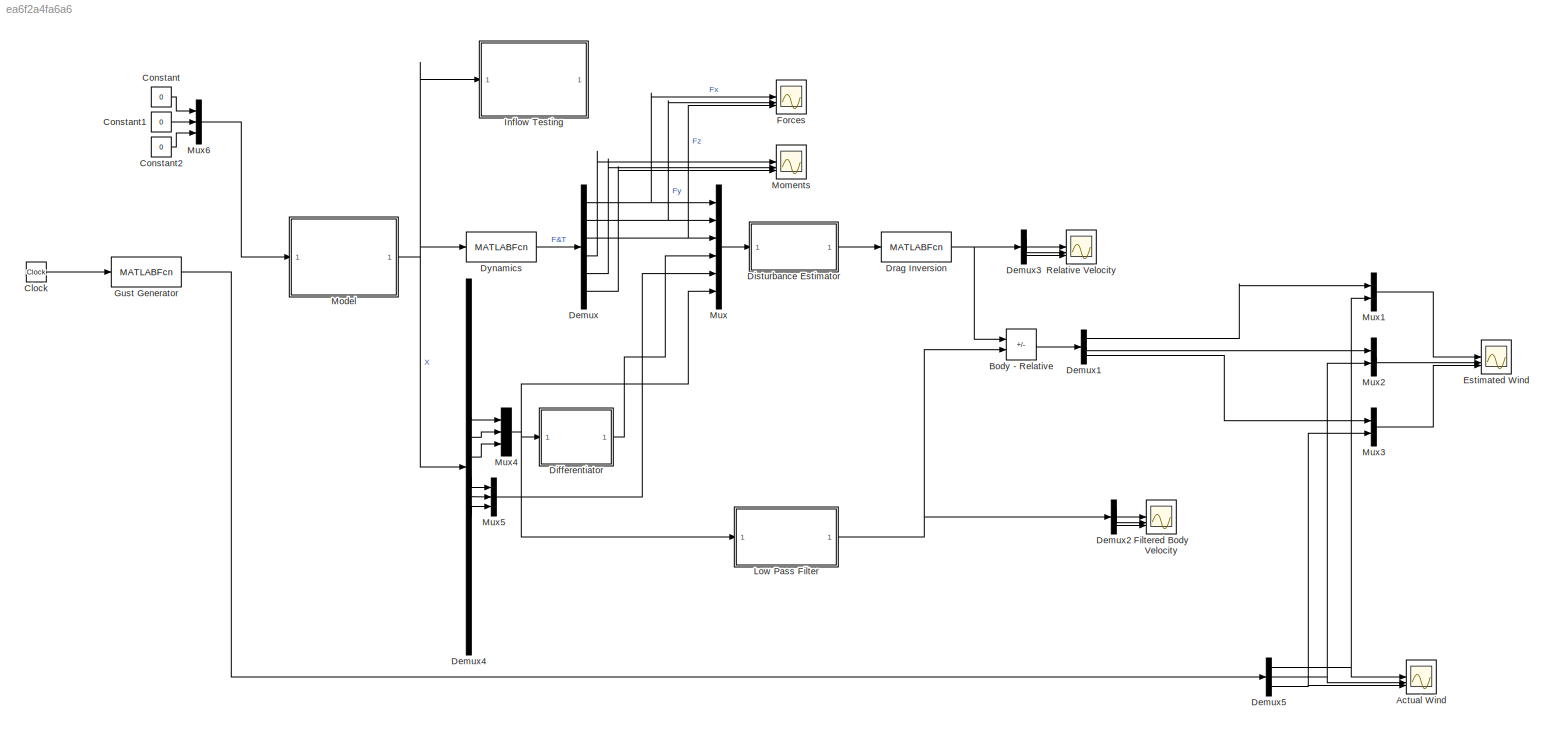
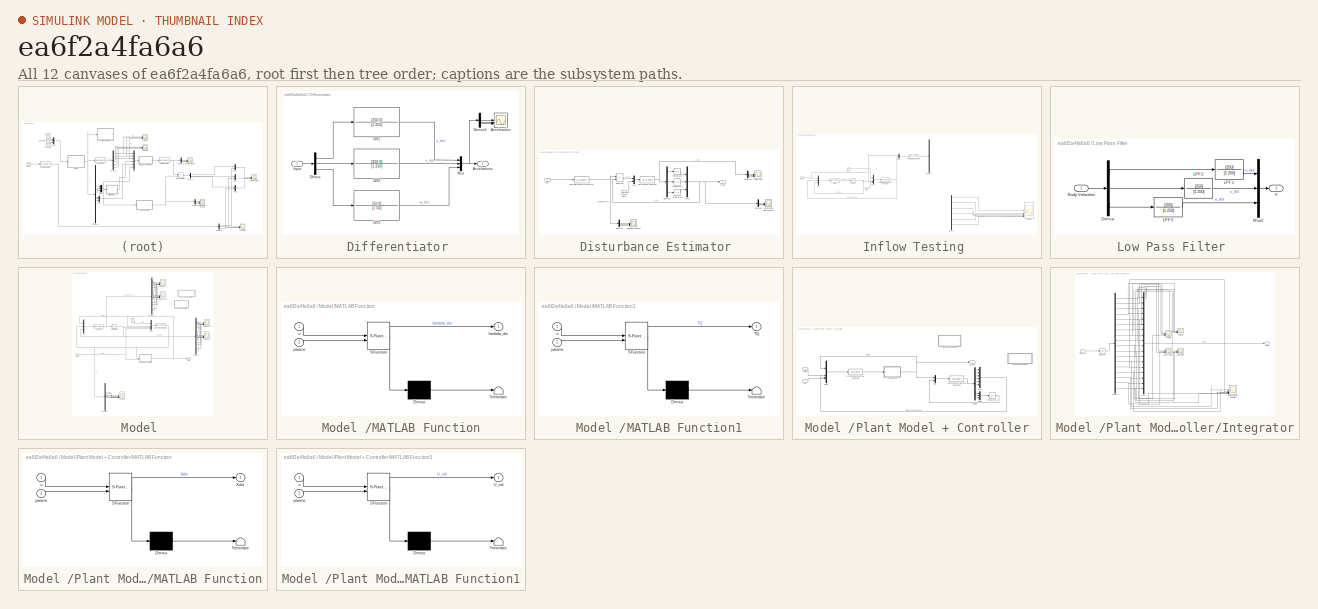
[diagram: thumbnail index - all 12 canvases of the model, root first then tree order]
MODEL slx_ea6f2a4fa6a6
KIND model
CONFIG AbsTol = auto
CONFIG EnableMultiTasking = off
CONFIG FixedStep = auto
CONFIG MaxStep = auto
CONFIG MinStep = auto
CONFIG RelTol = 1e-3
CONFIG SampleTimeConstraint = Unconstrained
CONFIG SolverName = VariableStepAuto
CONFIG StartTime = 0.0
CONFIG StopTime = 20
BLOCK [Scope] Actual Wind
  Commented = on
  Floating = off
  NumInputPorts = 3
  ScopeSpecificationString = Simulink.scopes.TimeScopeBlockCfg('CurrentConfiguration', extmgr.ConfigurationSet(extmgr.Configuration('Core','General UI',true),extmgr.Configuration('Core','Source UI',true),extmgr.Configuration('Sources','WiredSimulink',true,'DataLoggingVariableName','ScopeData2'),extmgr.Configuration('Visuals','Time Domain',true,'SerializedDisplays',{struct('MinYLimReal','-1.00000','MaxYLimReal','1.00000','YLab...<+3015ch>
BLOCK [Sum] Body - Relative
  Commented = on
  IconShape = rectangular
  Inputs = +-
BLOCK [Clock] Clock
BLOCK [Constant] Constant
  Value = 0
BLOCK [Constant] Constant1
  Value = 0
BLOCK [Constant] Constant2
  Value = 0
BLOCK [Demux] Demux
  Commented = on
  Outputs = 6
BLOCK [Demux] Demux1
  Commented = on
  Outputs = 3
BLOCK [Demux] Demux2
  Commented = on
  Outputs = 3
BLOCK [Demux] Demux3
  Commented = on
  Outputs = 3
BLOCK [Demux] Demux4
  Commented = on
  Outputs = 18
BLOCK [Demux] Demux5
  Commented = on
  Outputs = 3
BLOCK [SubSystem] Differentiator 
  Commented = on
BLOCK [Scope] Differentiator /Acceleration
  Floating = off
  NumInputPorts = 3
  ScopeSpecificationString = Simulink.scopes.TimeScopeBlockCfg('CurrentConfiguration', extmgr.ConfigurationSet(extmgr.Configuration('Core','General UI',true),extmgr.Configuration('Core','Source UI',true),extmgr.Configuration('Sources','WiredSimulink',true,'DataLoggingVariableName','ScopeData1'),extmgr.Configuration('Visuals','Time Domain',true,'SerializedDisplays',{struct('MinYLimReal','-0.05645','MaxYLimReal','0.0413','YLabe...<+3079ch>
BLOCK [Outport] Differentiator /Accelrations 
BLOCK [Demux] Differentiator /Demux
  Outputs = 3
BLOCK [Demux] Differentiator /Demux6
  Outputs = 3
BLOCK [TransferFcn] Differentiator /Diff1
  Denominator = [1 250]
  Numerator = [250 0]
BLOCK [TransferFcn] Differentiator /Diff2
  Denominator = [1 250]
  Numerator = [250 0]
BLOCK [TransferFcn] Differentiator /Diff3
  Denominator = [1 50]
  Numerator = [50 0]
BLOCK [Inport] Differentiator /Input
BLOCK [Mux] Differentiator /Mux
  DisplayOption = bar
  Inputs = 3
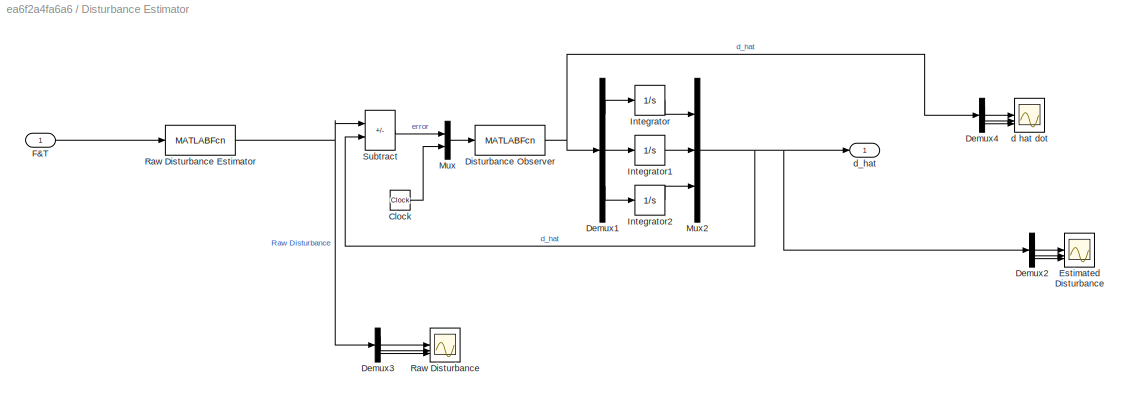
BLOCK [SubSystem] Disturbance Estimator 
  Commented = on
BLOCK [Clock] Disturbance Estimator /Clock
BLOCK [Demux] Disturbance Estimator /Demux1
  Outputs = 3
BLOCK [Demux] Disturbance Estimator /Demux2
  Outputs = 3
BLOCK [Demux] Disturbance Estimator /Demux3
  Outputs = 3
BLOCK [Demux] Disturbance Estimator /Demux4
  Outputs = 3
BLOCK [MATLABFcn] Disturbance Estimator /Disturbance Observer
  MATLABFcn = observer
  OutputDimensions = 3
BLOCK [Scope] Disturbance Estimator /Estimated Disturbance
  Floating = off
  NumInputPorts = 3
  ScopeSpecificationString = Simulink.scopes.TimeScopeBlockCfg('CurrentConfiguration', extmgr.ConfigurationSet(extmgr.Configuration('Core','General UI',true),extmgr.Configuration('Core','Source UI',true),extmgr.Configuration('Sources','WiredSimulink',true,'DataLoggingVariableName','ScopeData6'),extmgr.Configuration('Visuals','Time Domain',true,'SerializedDisplays',{struct('MinYLimReal','-1.00000','MaxYLimReal','1.00000','YLab...<+3026ch>
BLOCK [Inport] Disturbance Estimator /F&T
BLOCK [Integrator] Disturbance Estimator /Integrator
BLOCK [Integrator] Disturbance Estimator /Integrator1
BLOCK [Integrator] Disturbance Estimator /Integrator2
BLOCK [Mux] Disturbance Estimator /Mux
  DisplayOption = bar
  Inputs = 2
BLOCK [Mux] Disturbance Estimator /Mux2
  DisplayOption = bar
  Inputs = 3
BLOCK [Scope] Disturbance Estimator /Raw Disturbance
  Floating = off
  NumInputPorts = 3
  ScopeSpecificationString = Simulink.scopes.TimeScopeBlockCfg('CurrentConfiguration', extmgr.ConfigurationSet(extmgr.Configuration('Core','General UI',true),extmgr.Configuration('Core','Source UI',true),extmgr.Configuration('Sources','WiredSimulink',true,'DataLoggingVariableName','ScopeData7'),extmgr.Configuration('Visuals','Time Domain',true,'SerializedDisplays',{struct('MinYLimReal','-1.00000','MaxYLimReal','1.00000','YLab...<+3028ch>
BLOCK [MATLABFcn] Disturbance Estimator /Raw Disturbance Estimator
  MATLABFcn = disturbance
  OutputDimensions = 3
BLOCK [Sum] Disturbance Estimator /Subtract
  IconShape = rectangular
  Inputs = +-
BLOCK [Scope] Disturbance Estimator /d hat dot 
  Floating = off
  NumInputPorts = 3
  ScopeSpecificationString = Simulink.scopes.TimeScopeBlockCfg('CurrentConfiguration', extmgr.ConfigurationSet(extmgr.Configuration('Core','General UI',true),extmgr.Configuration('Core','Source UI',true),extmgr.Configuration('Sources','WiredSimulink',true,'DataLoggingVariableName','ScopeData1'),extmgr.Configuration('Visuals','Time Domain',true,'SerializedDisplays',{struct('MinYLimReal','-1.00000','MaxYLimReal','1.00000','YLab...<+3027ch>
BLOCK [Outport] Disturbance Estimator /d_hat
BLOCK [MATLABFcn] Drag Inversion
  Commented = on
  MATLABFcn = draginversion
  OutputDimensions = 3
BLOCK [MATLABFcn] Dynamics
  Commented = on
  MATLABFcn = dynamics
  OutputDimensions = 6
BLOCK [Scope] Estimated Wind
  Commented = on
  Floating = off
  NumInputPorts = 3
  ScopeSpecificationString = Simulink.scopes.TimeScopeBlockCfg('CurrentConfiguration', extmgr.ConfigurationSet(extmgr.Configuration('Core','General UI',true),extmgr.Configuration('Core','Source UI',true),extmgr.Configuration('Sources','WiredSimulink',true),extmgr.Configuration('Visuals','Time Domain',true,'PlotType','Line','SerializedDisplays',{struct('MinYLimReal','-1.00000','MaxYLimReal','1.00000','YLabelReal','','MinYLimMa...<+3347ch>
BLOCK [Scope] Filtered Body Velocity
  Commented = on
  Floating = off
  NumInputPorts = 3
  ScopeSpecificationString = Simulink.scopes.TimeScopeBlockCfg('CurrentConfiguration', extmgr.ConfigurationSet(extmgr.Configuration('Core','General UI',true),extmgr.Configuration('Core','Source UI',true),extmgr.Configuration('Sources','WiredSimulink',true,'DataLoggingVariableName','ScopeData3'),extmgr.Configuration('Visuals','Time Domain',true,'SerializedDisplays',{struct('MinYLimReal','-1.00000','MaxYLimReal','1.00000','YLab...<+3022ch>
BLOCK [Scope] Forces
  Floating = off
  NumInputPorts = 3
  ScopeSpecificationString = Simulink.scopes.TimeScopeBlockCfg('CurrentConfiguration', extmgr.ConfigurationSet(extmgr.Configuration('Core','General UI',true),extmgr.Configuration('Core','Source UI',true),extmgr.Configuration('Sources','WiredSimulink',true,'DataLoggingVariableName','ScopeData8'),extmgr.Configuration('Visuals','Time Domain',true,'SerializedDisplays',{struct('MinYLimReal','-1.00000','MaxYLimReal','1.00000','YLab...<+3056ch>
BLOCK [MATLABFcn] Gust Generator
  MATLABFcn = gust_generator
  OutputDimensions = 3
BLOCK [SubSystem] Inflow Testing 
  Commented = on
BLOCK [Clock] Inflow Testing /Clock
BLOCK [Demux] Inflow Testing /Demux
  Outputs = 18
BLOCK [Demux] Inflow Testing /Demux1
  Outputs = 12
BLOCK [MATLABFcn] Inflow Testing /Inflow
  MATLABFcn = get_inflow
  OutputDimensions = 18
BLOCK [MATLABFcn] Inflow Testing /Inflow from force & torque
  MATLABFcn = compute_Lambda
  OutputDimensions = 12
BLOCK [Integrator] Inflow Testing /Integrator
BLOCK [Mux] Inflow Testing /Mux
  DisplayOption = bar
  Inputs = 3
BLOCK [Mux] Inflow Testing /Mux1
  DisplayOption = bar
  Inputs = 2
BLOCK [Mux] Inflow Testing /Mux2
  DisplayOption = bar
BLOCK [MATLABFcn] Inflow Testing /Rotor Force & Torque Calculator 
  MATLABFcn = force_moment_rotor
  OutputDimensions = 36
BLOCK [Scope] Inflow Testing /Scope
  Floating = off
  NumInputPorts = 6
  ScopeSpecificationString = Simulink.scopes.TimeScopeBlockCfg('CurrentConfiguration', extmgr.ConfigurationSet(extmgr.Configuration('Core','General UI',true),extmgr.Configuration('Core','Source UI',true),extmgr.Configuration('Sources','WiredSimulink',true,'DataLoggingVariableName','ScopeData1'),extmgr.Configuration('Visuals','Time Domain',true,'SerializedDisplays',{struct('MinYLimReal','-0.0001','MaxYLimReal','0.00011','YLabe...<+5352ch>
BLOCK [Inport] Inflow Testing /States
BLOCK [Inport] Inflow Testing /Wind
  Port = 2
BLOCK [SubSystem] Low Pass Filter 
  Commented = on
BLOCK [Inport] Low Pass Filter /Body Velocities
BLOCK [Demux] Low Pass Filter /Demux
  Outputs = 3
BLOCK [TransferFcn] Low Pass Filter /LPF1
  Denominator = [1 250]
  Numerator = [250]
BLOCK [TransferFcn] Low Pass Filter /LPF2
  Denominator = [1 250]
  Numerator = [250]
BLOCK [TransferFcn] Low Pass Filter /LPF3
  Denominator = [1 250]
  Numerator = [250]
BLOCK [Mux] Low Pass Filter /Mux2
  DisplayOption = bar
  Inputs = 3
BLOCK [Outport] Low Pass Filter /V
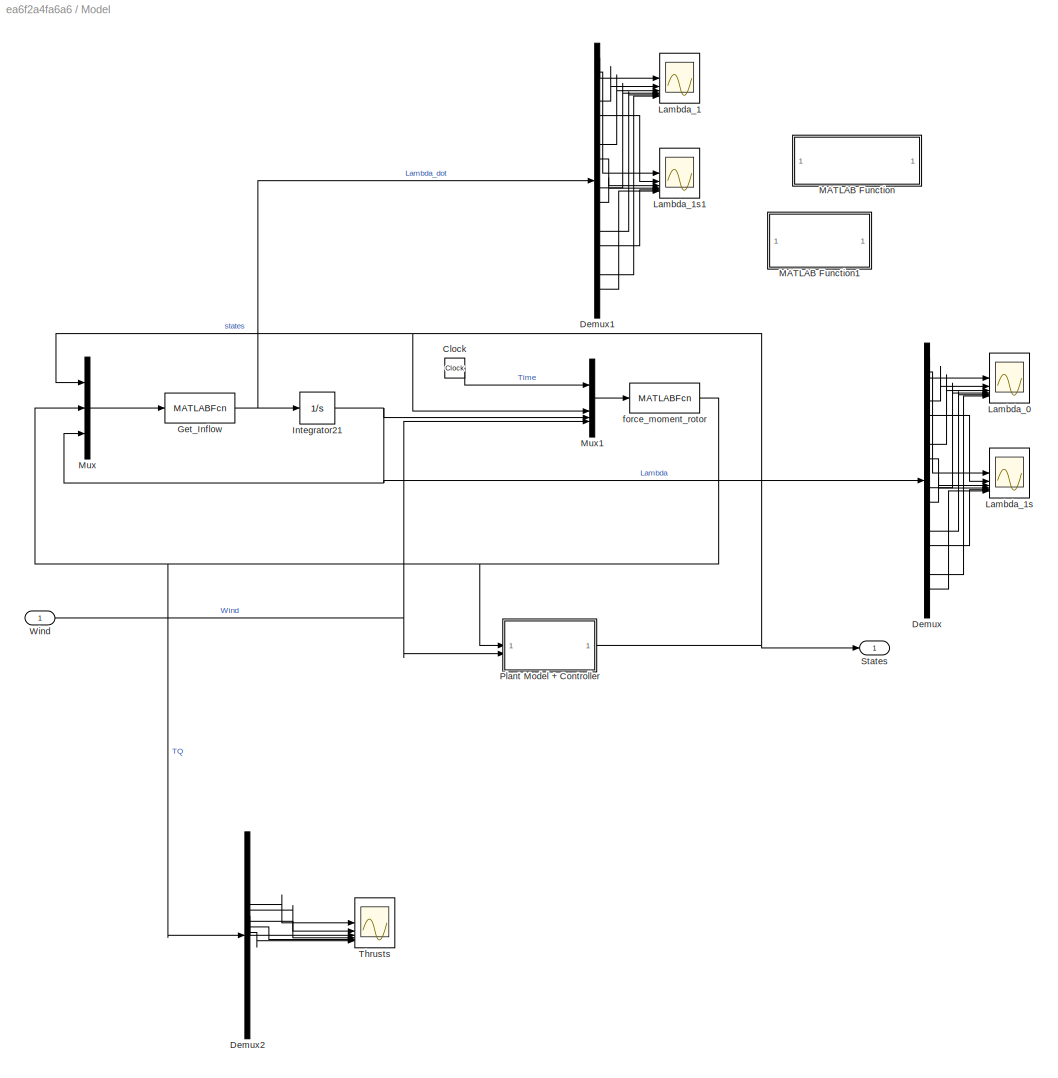
BLOCK [SubSystem] Model 
BLOCK [Clock] Model /Clock
BLOCK [Demux] Model /Demux
  Outputs = 18
BLOCK [Demux] Model /Demux1
  Outputs = 18
BLOCK [Demux] Model /Demux2
  Commented = on
  Outputs = 36
BLOCK [MATLABFcn] Model /Get_Inflow
  MATLABFcn = get_inflow
  OutputDimensions = 18
BLOCK [Integrator] Model /Integrator21
  IgnoreLimit = on
  InitialCondition = lambda_ini
BLOCK [Scope] Model /Lambda_0
  Floating = off
  NumInputPorts = 6
  ScopeSpecificationString = Simulink.scopes.TimeScopeBlockCfg('CurrentConfiguration', extmgr.ConfigurationSet(extmgr.Configuration('Core','General UI',true),extmgr.Configuration('Core','Source UI',true),extmgr.Configuration('Sources','WiredSimulink',true,'DataLoggingVariableName','ScopeData2'),extmgr.Configuration('Visuals','Time Domain',true,'SerializedDisplays',{struct('MinYLimReal','0.05681','MaxYLimReal','0.09307','YLabe...<+5349ch>
BLOCK [Scope] Model /Lambda_1
  Floating = off
  NumInputPorts = 6
  ScopeSpecificationString = Simulink.scopes.TimeScopeBlockCfg('CurrentConfiguration', extmgr.ConfigurationSet(extmgr.Configuration('Core','General UI',true),extmgr.Configuration('Core','Source UI',true),extmgr.Configuration('Sources','WiredSimulink',true,'DataLoggingVariableName','ScopeData1'),extmgr.Configuration('Visuals','Time Domain',true,'SerializedDisplays',{struct('MinYLimReal','-1.00000','MaxYLimReal','1.00000','YLab...<+5358ch>
BLOCK [Scope] Model /Lambda_1s
  Floating = off
  NumInputPorts = 6
  ScopeSpecificationString = Simulink.scopes.TimeScopeBlockCfg('CurrentConfiguration', extmgr.ConfigurationSet(extmgr.Configuration('Core','General UI',true),extmgr.Configuration('Core','Source UI',true),extmgr.Configuration('Sources','WiredSimulink',true,'DataLoggingVariableName','ScopeData3'),extmgr.Configuration('Visuals','Time Domain',true,'SerializedDisplays',{struct('MinYLimReal','-1.00000','MaxYLimReal','1.00000','YLab...<+5352ch>
BLOCK [Scope] Model /Lambda_1s1
  Floating = off
  NumInputPorts = 6
  ScopeSpecificationString = Simulink.scopes.TimeScopeBlockCfg('CurrentConfiguration', extmgr.ConfigurationSet(extmgr.Configuration('Core','General UI',true),extmgr.Configuration('Core','Source UI',true),extmgr.Configuration('Sources','WiredSimulink',true,'DataLoggingVariableName','ScopeData2'),extmgr.Configuration('Visuals','Time Domain',true,'SerializedDisplays',{struct('MinYLimReal','-1.00000','MaxYLimReal','1.00000','YLab...<+5352ch>
BLOCK [SubSystem] Model /MATLAB Function
  Commented = on
  ErrorFcn = Stateflow.Translate.translate
  PermitHierarchicalResolution = ExplicitOnly
  SFBlockType = MATLAB Function
  TreatAsAtomicUnit = on
BLOCK [Demux] Model /MATLAB Function/ Demux 
  Outputs = 1
BLOCK [S-Function] Model /MATLAB Function/ SFunction 
  EnableBusSupport = on
  FunctionName = sf_sfun
  PortCounts = [2 2]
  SFcnIsStateOwnerBlock = off
  SFunctionDeploymentMode = off
  Tag = Stateflow S-Function 2
BLOCK [Terminator] Model /MATLAB Function/ Terminator 
BLOCK [Outport] Model /MATLAB Function/lambda_dot
BLOCK [Inport] Model /MATLAB Function/params
  Port = 2
BLOCK [Inport] Model /MATLAB Function/u
BLOCK [SubSystem] Model /MATLAB Function1
  Commented = on
  ErrorFcn = Stateflow.Translate.translate
  PermitHierarchicalResolution = ExplicitOnly
  SFBlockType = MATLAB Function
  TreatAsAtomicUnit = on
BLOCK [Demux] Model /MATLAB Function1/ Demux 
  Outputs = 1
BLOCK [S-Function] Model /MATLAB Function1/ SFunction 
  EnableBusSupport = on
  FunctionName = sf_sfun
  PortCounts = [2 2]
  SFcnIsStateOwnerBlock = off
  SFunctionDeploymentMode = off
  Tag = Stateflow S-Function 1
BLOCK [Terminator] Model /MATLAB Function1/ Terminator 
BLOCK [Outport] Model /MATLAB Function1/TQ
BLOCK [Inport] Model /MATLAB Function1/params
  Port = 2
BLOCK [Inport] Model /MATLAB Function1/u
BLOCK [Mux] Model /Mux
  DisplayOption = bar
  Inputs = 3
BLOCK [Mux] Model /Mux1
  DisplayOption = bar
BLOCK [SubSystem] Model /Plant Model + Controller
BLOCK [Demux] Model /Plant Model + Controller/Demux
  Outputs = 9
BLOCK [SubSystem] Model /Plant Model + Controller/Integrator
BLOCK [Demux] Model /Plant Model + Controller/Integrator/Demux4
  Outputs = 18
BLOCK [Scope] Model /Plant Model + Controller/Integrator/Euler Angles
  Floating = off
  NumInputPorts = 3
  ScopeSpecificationString = Simulink.scopes.TimeScopeBlockCfg('CurrentConfiguration', extmgr.ConfigurationSet(extmgr.Configuration('Core','General UI',true),extmgr.Configuration('Core','Source UI',true),extmgr.Configuration('Sources','WiredSimulink',true,'DataLoggingVariableName','ScopeData4'),extmgr.Configuration('Visuals','Time Domain',true,'SerializedDisplays',{struct('MinYLimReal','-0.0001','MaxYLimReal','0.00001','YLabe...<+3021ch>
BLOCK [Scope] Model /Plant Model + Controller/Integrator/Euler Rates
  Floating = off
  NumInputPorts = 3
  ScopeSpecificationString = Simulink.scopes.TimeScopeBlockCfg('CurrentConfiguration', extmgr.ConfigurationSet(extmgr.Configuration('Core','General UI',true),extmgr.Configuration('Core','Source UI',true),extmgr.Configuration('Sources','WiredSimulink',true,'DataLoggingVariableName','ScopeData5'),extmgr.Configuration('Visuals','Time Domain',true,'SerializedDisplays',{struct('MinYLimReal','-0.19884','MaxYLimReal','0.02209','YLab...<+3054ch>
BLOCK [Integrator] Model /Plant Model + Controller/Integrator/Integrator
  InitialCondition = X0
BLOCK [Mux] Model /Plant Model + Controller/Integrator/Mux1
  DisplayOption = bar
  Inputs = 18
BLOCK [Scope] Model /Plant Model + Controller/Integrator/Position
  Floating = off
  NumInputPorts = 3
  ScopeSpecificationString = Simulink.scopes.TimeScopeBlockCfg('CurrentConfiguration', extmgr.ConfigurationSet(extmgr.Configuration('Core','General UI',true),extmgr.Configuration('Core','Source UI',true),extmgr.Configuration('Sources','WiredSimulink',true,'DataLoggingVariableName','ScopeData1'),extmgr.Configuration('Visuals','Time Domain',true,'SerializedDisplays',{struct('MinYLimReal','-0.00039','MaxYLimReal','0.0032','YLabe...<+3054ch>
BLOCK [Scope] Model /Plant Model + Controller/Integrator/Rotor Angular Velocities 
  Floating = off
  NumInputPorts = 6
  ScopeSpecificationString = Simulink.scopes.TimeScopeBlockCfg('CurrentConfiguration', extmgr.ConfigurationSet(extmgr.Configuration('Core','General UI',true),extmgr.Configuration('Core','Source UI',true),extmgr.Configuration('Sources','WiredSimulink',true,'DataLoggingVariableName','ScopeData2'),extmgr.Configuration('Visuals','Time Domain',true,'SerializedDisplays',{struct('MinYLimReal','-56.24798','MaxYLimReal','506.23178','Y...<+5381ch>
BLOCK [Inport] Model /Plant Model + Controller/Integrator/State_dot
  PortDimensions = 18
BLOCK [Outport] Model /Plant Model + Controller/Integrator/States
BLOCK [Scope] Model /Plant Model + Controller/Integrator/Velocity
  Floating = off
  NumInputPorts = 3
  ScopeSpecificationString = Simulink.scopes.TimeScopeBlockCfg('CurrentConfiguration', extmgr.ConfigurationSet(extmgr.Configuration('Core','General UI',true),extmgr.Configuration('Core','Source UI',true),extmgr.Configuration('Sources','WiredSimulink',true,'DataLoggingVariableName','ScopeData3'),extmgr.Configuration('Visuals','Time Domain',true,'SerializedDisplays',{struct('MinYLimReal','-0.00092','MaxYLimReal','0.00092','YLab...<+3053ch>
BLOCK [Integrator] Model /Plant Model + Controller/Integrator1
BLOCK [MATLABFcn] Model /Plant Model + Controller/Interpreted MATLAB Function
  MATLABFcn = hexarotor_dynamics
  OutputDimensions = 18
BLOCK [MATLABFcn] Model /Plant Model + Controller/Interpreted MATLAB Function1
  MATLABFcn = simulate_hexarotor
  OutputDimensions = 9
BLOCK [SubSystem] Model /Plant Model + Controller/MATLAB Function
  Commented = on
  ErrorFcn = Stateflow.Translate.translate
  PermitHierarchicalResolution = ExplicitOnly
  SFBlockType = MATLAB Function
  TreatAsAtomicUnit = on
BLOCK [Demux] Model /Plant Model + Controller/MATLAB Function/ Demux 
  Outputs = 1
BLOCK [S-Function] Model /Plant Model + Controller/MATLAB Function/ SFunction 
  EnableBusSupport = on
  FunctionName = sf_sfun
  PortCounts = [2 2]
  SFcnIsStateOwnerBlock = off
  SFunctionDeploymentMode = off
  Tag = Stateflow S-Function 3
BLOCK [Terminator] Model /Plant Model + Controller/MATLAB Function/ Terminator 
BLOCK [Outport] Model /Plant Model + Controller/MATLAB Function/Xdot
BLOCK [Inport] Model /Plant Model + Controller/MATLAB Function/params
  Port = 2
BLOCK [Inport] Model /Plant Model + Controller/MATLAB Function/u
BLOCK [SubSystem] Model /Plant Model + Controller/MATLAB Function1
  Commented = on
  ErrorFcn = Stateflow.Translate.translate
  PermitHierarchicalResolution = ExplicitOnly
  SFBlockType = MATLAB Function
  TreatAsAtomicUnit = on
BLOCK [Demux] Model /Plant Model + Controller/MATLAB Function1/ Demux 
  Outputs = 1
BLOCK [S-Function] Model /Plant Model + Controller/MATLAB Function1/ SFunction 
  EnableBusSupport = on
  FunctionName = sf_sfun
  PortCounts = [2 2]
  SFcnIsStateOwnerBlock = off
  SFunctionDeploymentMode = off
  Tag = Stateflow S-Function 4
BLOCK [Terminator] Model /Plant Model + Controller/MATLAB Function1/ Terminator 
BLOCK [Outport] Model /Plant Model + Controller/MATLAB Function1/U_ctrl
BLOCK [Inport] Model /Plant Model + Controller/MATLAB Function1/params
  Port = 2
BLOCK [Inport] Model /Plant Model + Controller/MATLAB Function1/u
BLOCK [Mux] Model /Plant Model + Controller/Mux
  DisplayOption = bar
  Inputs = 2
BLOCK [Mux] Model /Plant Model + Controller/Mux1
  DisplayOption = bar
  Inputs = 6
BLOCK [Mux] Model /Plant Model + Controller/Mux2
  DisplayOption = bar
BLOCK [Mux] Model /Plant Model + Controller/Mux3
  DisplayOption = bar
  Inputs = 3
BLOCK [Outport] Model /Plant Model + Controller/States
BLOCK [Inport] Model /Plant Model + Controller/TQ
BLOCK [Inport] Model /Plant Model + Controller/Wind
  Port = 2
BLOCK [Outport] Model /States
BLOCK [Scope] Model /Thrusts
  Commented = on
  Floating = off
  NumInputPorts = 6
  ScopeSpecificationString = Simulink.scopes.TimeScopeBlockCfg('CurrentConfiguration', extmgr.ConfigurationSet(extmgr.Configuration('Core','General UI',true),extmgr.Configuration('Core','Source UI',true),extmgr.Configuration('Sources','WiredSimulink',true,'DataLoggingVariableName','ScopeData3'),extmgr.Configuration('Visuals','Time Domain',true,'SerializedDisplays',{struct('MinYLimReal','-26.39732','MaxYLimReal','237.57592','Y...<+5369ch>
BLOCK [Inport] Model /Wind 
BLOCK [MATLABFcn] Model /force_moment_rotor
  MATLABFcn = force_moment_rotor
  OutputDimensions = 36
BLOCK [Scope] Moments
  Commented = on
  Floating = off
  NumInputPorts = 3
  ScopeSpecificationString = Simulink.scopes.TimeScopeBlockCfg('CurrentConfiguration', extmgr.ConfigurationSet(extmgr.Configuration('Core','General UI',true),extmgr.Configuration('Core','Source UI',true),extmgr.Configuration('Sources','WiredSimulink',true,'DataLoggingVariableName','ScopeData1'),extmgr.Configuration('Visuals','Time Domain',true,'SerializedDisplays',{struct('MinYLimReal','-1.00000','MaxYLimReal','1.00000','YLab...<+3068ch>
BLOCK [Mux] Mux
  Commented = on
  DisplayOption = bar
  Inputs = 6
BLOCK [Mux] Mux1
  Commented = on
  DisplayOption = bar
  Inputs = 2
BLOCK [Mux] Mux2
  Commented = on
  DisplayOption = bar
  Inputs = 2
BLOCK [Mux] Mux3
  Commented = on
  DisplayOption = bar
  Inputs = 2
BLOCK [Mux] Mux4
  Commented = on
  DisplayOption = bar
  Inputs = 3
BLOCK [Mux] Mux5
  Commented = on
  DisplayOption = bar
  Inputs = 3
BLOCK [Mux] Mux6
  DisplayOption = bar
  Inputs = 3
BLOCK [Scope] Relative Velocity
  Commented = on
  Floating = off
  NumInputPorts = 3
  ScopeSpecificationString = Simulink.scopes.TimeScopeBlockCfg('CurrentConfiguration', extmgr.ConfigurationSet(extmgr.Configuration('Core','General UI',true),extmgr.Configuration('Core','Source UI',true),extmgr.Configuration('Sources','WiredSimulink',true,'DataLoggingVariableName','ScopeData4'),extmgr.Configuration('Visuals','Time Domain',true,'SerializedDisplays',{struct('MinYLimReal','-1.00000','MaxYLimReal','1.00000','YLab...<+3025ch>
LINE Body - Relative:1 -> Demux1:1
LINE Clock:1 -> Gust Generator:1
LINE Constant1:1 -> Mux6:2
LINE Constant2:1 -> Mux6:3
LINE Constant:1 -> Mux6:1
LINE Demux1:1 -> Mux1:1
LINE Demux1:2 -> Mux2:1
LINE Demux1:3 -> Mux3:1
LINE Demux2:1 -> Filtered Body Velocity:1
LINE Demux2:2 -> Filtered Body Velocity:2
LINE Demux2:3 -> Filtered Body Velocity:3
LINE Demux3:1 -> Relative Velocity:1
LINE Demux3:2 -> Relative Velocity:2
LINE Demux3:3 -> Relative Velocity:3
LINE Demux4:10 -> Mux5:1
LINE Demux4:11 -> Mux5:2
LINE Demux4:12 -> Mux5:3
LINE Demux4:7 -> Mux4:1
LINE Demux4:8 -> Mux4:2
LINE Demux4:9 -> Mux4:3
NET Demux5:1 -> Actual Wind:1, Mux1:2
NET Demux5:2 -> Actual Wind:2, Mux2:2
NET Demux5:3 -> Actual Wind:3, Mux3:2
NET Demux:1 -> Forces:1, Mux:1
NET Demux:2 -> Forces:2, Mux:2
NET Demux:3 -> Forces:3, Mux:3
LINE Demux:4 -> Moments:1
LINE Demux:5 -> Moments:2
LINE Demux:6 -> Moments:3
LINE Differentiator /Demux6:1 -> Differentiator /Acceleration:1
LINE Differentiator /Demux6:2 -> Differentiator /Acceleration:2
LINE Differentiator /Demux6:3 -> Differentiator /Acceleration:3
LINE Differentiator /Demux:1 -> Differentiator /Diff1:1
LINE Differentiator /Demux:2 -> Differentiator /Diff2:1
LINE Differentiator /Demux:3 -> Differentiator /Diff3:1
LINE Differentiator /Diff1:1 -> Differentiator /Mux:1
LINE Differentiator /Diff2:1 -> Differentiator /Mux:2
LINE Differentiator /Diff3:1 -> Differentiator /Mux:3
LINE Differentiator /Input:1 -> Differentiator /Demux:1
NET Differentiator /Mux:1 -> Differentiator /Accelrations :1, Differentiator /Demux6:1
LINE Differentiator :1 -> Mux:4
LINE Disturbance Estimator /Clock:1 -> Disturbance Estimator /Mux:2
LINE Disturbance Estimator /Demux1:1 -> Disturbance Estimator /Integrator:1
LINE Disturbance Estimator /Demux1:2 -> Disturbance Estimator /Integrator1:1
LINE Disturbance Estimator /Demux1:3 -> Disturbance Estimator /Integrator2:1
LINE Disturbance Estimator /Demux2:1 -> Disturbance Estimator /Estimated Disturbance:1
LINE Disturbance Estimator /Demux2:2 -> Disturbance Estimator /Estimated Disturbance:2
LINE Disturbance Estimator /Demux2:3 -> Disturbance Estimator /Estimated Disturbance:3
LINE Disturbance Estimator /Demux3:1 -> Disturbance Estimator /Raw Disturbance:1
LINE Disturbance Estimator /Demux3:2 -> Disturbance Estimator /Raw Disturbance:2
LINE Disturbance Estimator /Demux3:3 -> Disturbance Estimator /Raw Disturbance:3
LINE Disturbance Estimator /Demux4:1 -> Disturbance Estimator /d hat dot :1
LINE Disturbance Estimator /Demux4:2 -> Disturbance Estimator /d hat dot :2
LINE Disturbance Estimator /Demux4:3 -> Disturbance Estimator /d hat dot :3
NET Disturbance Estimator /Disturbance Observer:1 -> Disturbance Estimator /Demux1:1, Disturbance Estimator /Demux4:1
LINE Disturbance Estimator /F&T:1 -> Disturbance Estimator /Raw Disturbance Estimator:1
LINE Disturbance Estimator /Integrator1:1 -> Disturbance Estimator /Mux2:2
LINE Disturbance Estimator /Integrator2:1 -> Disturbance Estimator /Mux2:3
LINE Disturbance Estimator /Integrator:1 -> Disturbance Estimator /Mux2:1
NET Disturbance Estimator /Mux2:1 -> Disturbance Estimator /Demux2:1, Disturbance Estimator /Subtract:2, Disturbance Estimator /d_hat:1
LINE Disturbance Estimator /Mux:1 -> Disturbance Estimator /Disturbance Observer:1
NET Disturbance Estimator /Raw Disturbance Estimator:1 -> Disturbance Estimator /Demux3:1, Disturbance Estimator /Subtract:1
LINE Disturbance Estimator /Subtract:1 -> Disturbance Estimator /Mux:1
LINE Disturbance Estimator :1 -> Drag Inversion:1
NET Drag Inversion:1 -> Body - Relative:1, Demux3:1
LINE Dynamics:1 -> Demux:1
LINE Gust Generator:1 -> Demux5:1
LINE Inflow Testing /Clock:1 -> Inflow Testing /Mux2:1
LINE Inflow Testing /Demux:1 -> Inflow Testing /Scope:1
LINE Inflow Testing /Demux:10 -> Inflow Testing /Scope:4
LINE Inflow Testing /Demux:13 -> Inflow Testing /Scope:5
LINE Inflow Testing /Demux:16 -> Inflow Testing /Scope:6
LINE Inflow Testing /Demux:4 -> Inflow Testing /Scope:2
LINE Inflow Testing /Demux:7 -> Inflow Testing /Scope:3
LINE Inflow Testing /Inflow from force & torque:1 -> Inflow Testing /Demux1:1
LINE Inflow Testing /Inflow:1 -> Inflow Testing /Integrator:1
NET Inflow Testing /Integrator:1 -> Inflow Testing /Mux2:3, Inflow Testing /Mux:3
LINE Inflow Testing /Mux1:1 -> Inflow Testing /Inflow from force & torque:1
LINE Inflow Testing /Mux2:1 -> Inflow Testing /Rotor Force & Torque Calculator :1
LINE Inflow Testing /Mux:1 -> Inflow Testing /Inflow:1
NET Inflow Testing /Rotor Force & Torque Calculator :1 -> Inflow Testing /Mux1:2, Inflow Testing /Mux:2
NET Inflow Testing /States:1 -> Inflow Testing /Mux1:1, Inflow Testing /Mux2:2, Inflow Testing /Mux:1
LINE Inflow Testing /Wind:1 -> Inflow Testing /Mux2:4
LINE Low Pass Filter /Body Velocities:1 -> Low Pass Filter /Demux:1
LINE Low Pass Filter /Demux:1 -> Low Pass Filter /LPF1:1
LINE Low Pass Filter /Demux:2 -> Low Pass Filter /LPF2:1
LINE Low Pass Filter /Demux:3 -> Low Pass Filter /LPF3:1
LINE Low Pass Filter /LPF1:1 -> Low Pass Filter /Mux2:1
LINE Low Pass Filter /LPF2:1 -> Low Pass Filter /Mux2:2
LINE Low Pass Filter /LPF3:1 -> Low Pass Filter /Mux2:3
LINE Low Pass Filter /Mux2:1 -> Low Pass Filter /V:1
NET Low Pass Filter :1 -> Body - Relative:2, Demux2:1
LINE Model /Clock:1 -> Model /Mux1:1
LINE Model /Demux1:1 -> Model /Lambda_1:1
LINE Model /Demux1:10 -> Model /Lambda_1:4
LINE Model /Demux1:11 -> Model /Lambda_1s1:4
LINE Model /Demux1:13 -> Model /Lambda_1:5
LINE Model /Demux1:14 -> Model /Lambda_1s1:5
LINE Model /Demux1:16 -> Model /Lambda_1:6
LINE Model /Demux1:17 -> Model /Lambda_1s1:6
LINE Model /Demux1:2 -> Model /Lambda_1s1:1
LINE Model /Demux1:4 -> Model /Lambda_1:2
LINE Model /Demux1:5 -> Model /Lambda_1s1:2
LINE Model /Demux1:7 -> Model /Lambda_1:3
LINE Model /Demux1:8 -> Model /Lambda_1s1:3
LINE Model /Demux2:13 -> Model /Thrusts:1
LINE Model /Demux2:14 -> Model /Thrusts:2
LINE Model /Demux2:15 -> Model /Thrusts:3
LINE Model /Demux2:16 -> Model /Thrusts:4
LINE Model /Demux2:17 -> Model /Thrusts:5
LINE Model /Demux2:18 -> Model /Thrusts:6
LINE Model /Demux:1 -> Model /Lambda_0:1
LINE Model /Demux:10 -> Model /Lambda_0:4
LINE Model /Demux:11 -> Model /Lambda_1s:4
LINE Model /Demux:13 -> Model /Lambda_0:5
LINE Model /Demux:14 -> Model /Lambda_1s:5
LINE Model /Demux:16 -> Model /Lambda_0:6
LINE Model /Demux:17 -> Model /Lambda_1s:6
LINE Model /Demux:2 -> Model /Lambda_1s:1
LINE Model /Demux:4 -> Model /Lambda_0:2
LINE Model /Demux:5 -> Model /Lambda_1s:2
LINE Model /Demux:7 -> Model /Lambda_0:3
LINE Model /Demux:8 -> Model /Lambda_1s:3
NET Model /Get_Inflow:1 -> Model /Demux1:1, Model /Integrator21:1
NET Model /Integrator21:1 -> Model /Demux:1, Model /Mux1:3, Model /Mux:3
LINE Model /Mux1:1 -> Model /force_moment_rotor:1
LINE Model /Mux:1 -> Model /Get_Inflow:1
LINE Model /Plant Model + Controller/Demux:1 -> Model /Plant Model + Controller/Mux1:1
LINE Model /Plant Model + Controller/Demux:2 -> Model /Plant Model + Controller/Mux1:2
LINE Model /Plant Model + Controller/Demux:3 -> Model /Plant Model + Controller/Mux1:3
LINE Model /Plant Model + Controller/Demux:4 -> Model /Plant Model + Controller/Mux1:4
LINE Model /Plant Model + Controller/Demux:5 -> Model /Plant Model + Controller/Mux1:5
LINE Model /Plant Model + Controller/Demux:6 -> Model /Plant Model + Controller/Mux1:6
LINE Model /Plant Model + Controller/Demux:7 -> Model /Plant Model + Controller/Mux3:1
LINE Model /Plant Model + Controller/Demux:8 -> Model /Plant Model + Controller/Mux3:2
LINE Model /Plant Model + Controller/Demux:9 -> Model /Plant Model + Controller/Mux3:3
NET Model /Plant Model + Controller/Integrator/Demux4:1 -> Model /Plant Model + Controller/Integrator/Mux1:1, Model /Plant Model + Controller/Integrator/Position:1
NET Model /Plant Model + Controller/Integrator/Demux4:10 -> Model /Plant Model + Controller/Integrator/Euler Rates:1, Model /Plant Model + Controller/Integrator/Mux1:10
NET Model /Plant Model + Controller/Integrator/Demux4:11 -> Model /Plant Model + Controller/Integrator/Euler Rates:2, Model /Plant Model + Controller/Integrator/Mux1:11
NET Model /Plant Model + Controller/Integrator/Demux4:12 -> Model /Plant Model + Controller/Integrator/Euler Rates:3, Model /Plant Model + Controller/Integrator/Mux1:12
NET Model /Plant Model + Controller/Integrator/Demux4:13 -> Model /Plant Model + Controller/Integrator/Mux1:13, Model /Plant Model + Controller/Integrator/Rotor Angular Velocities :1
NET Model /Plant Model + Controller/Integrator/Demux4:14 -> Model /Plant Model + Controller/Integrator/Mux1:14, Model /Plant Model + Controller/Integrator/Rotor Angular Velocities :2
NET Model /Plant Model + Controller/Integrator/Demux4:15 -> Model /Plant Model + Controller/Integrator/Mux1:15, Model /Plant Model + Controller/Integrator/Rotor Angular Velocities :3
NET Model /Plant Model + Controller/Integrator/Demux4:16 -> Model /Plant Model + Controller/Integrator/Mux1:16, Model /Plant Model + Controller/Integrator/Rotor Angular Velocities :4
NET Model /Plant Model + Controller/Integrator/Demux4:17 -> Model /Plant Model + Controller/Integrator/Mux1:17, Model /Plant Model + Controller/Integrator/Rotor Angular Velocities :5
NET Model /Plant Model + Controller/Integrator/Demux4:18 -> Model /Plant Model + Controller/Integrator/Mux1:18, Model /Plant Model + Controller/Integrator/Rotor Angular Velocities :6
NET Model /Plant Model + Controller/Integrator/Demux4:2 -> Model /Plant Model + Controller/Integrator/Mux1:2, Model /Plant Model + Controller/Integrator/Position:2
NET Model /Plant Model + Controller/Integrator/Demux4:3 -> Model /Plant Model + Controller/Integrator/Mux1:3, Model /Plant Model + Controller/Integrator/Position:3
NET Model /Plant Model + Controller/Integrator/Demux4:4 -> Model /Plant Model + Controller/Integrator/Euler Angles:1, Model /Plant Model + Controller/Integrator/Mux1:4
NET Model /Plant Model + Controller/Integrator/Demux4:5 -> Model /Plant Model + Controller/Integrator/Euler Angles:2, Model /Plant Model + Controller/Integrator/Mux1:5
NET Model /Plant Model + Controller/Integrator/Demux4:6 -> Model /Plant Model + Controller/Integrator/Euler Angles:3, Model /Plant Model + Controller/Integrator/Mux1:6
NET Model /Plant Model + Controller/Integrator/Demux4:7 -> Model /Plant Model + Controller/Integrator/Mux1:7, Model /Plant Model + Controller/Integrator/Velocity:1
NET Model /Plant Model + Controller/Integrator/Demux4:8 -> Model /Plant Model + Controller/Integrator/Mux1:8, Model /Plant Model + Controller/Integrator/Velocity:2
NET Model /Plant Model + Controller/Integrator/Demux4:9 -> Model /Plant Model + Controller/Integrator/Mux1:9, Model /Plant Model + Controller/Integrator/Velocity:3
LINE Model /Plant Model + Controller/Integrator/Integrator:1 -> Model /Plant Model + Controller/Integrator/Demux4:1
LINE Model /Plant Model + Controller/Integrator/Mux1:1 -> Model /Plant Model + Controller/Integrator/States:1
LINE Model /Plant Model + Controller/Integrator/State_dot:1 -> Model /Plant Model + Controller/Integrator/Integrator:1
LINE Model /Plant Model + Controller/Integrator1:1 -> Model /Plant Model + Controller/Mux:2
NET Model /Plant Model + Controller/Integrator:1 -> Model /Plant Model + Controller/Mux2:1, Model /Plant Model + Controller/Mux:1, Model /Plant Model + Controller/States:1
LINE Model /Plant Model + Controller/Interpreted MATLAB Function1:1 -> Model /Plant Model + Controller/Demux:1
LINE Model /Plant Model + Controller/Interpreted MATLAB Function:1 -> Model /Plant Model + Controller/Integrator:1
LINE Model /Plant Model + Controller/Mux1:1 -> Model /Plant Model + Controller/Mux2:3
LINE Model /Plant Model + Controller/Mux2:1 -> Model /Plant Model + Controller/Interpreted MATLAB Function:1
LINE Model /Plant Model + Controller/Mux3:1 -> Model /Plant Model + Controller/Integrator1:1
LINE Model /Plant Model + Controller/Mux:1 -> Model /Plant Model + Controller/Interpreted MATLAB Function1:1
LINE Model /Plant Model + Controller/TQ:1 -> Model /Plant Model + Controller/Mux2:4
LINE Model /Plant Model + Controller/Wind:1 -> Model /Plant Model + Controller/Mux2:2
NET Model /Plant Model + Controller:1 -> Model /Mux1:2, Model /Mux:1, Model /States:1
NET Model /Wind :1 -> Model /Mux1:4, Model /Plant Model + Controller:2
NET Model /force_moment_rotor:1 -> Model /Demux2:1, Model /Mux:2, Model /Plant Model + Controller:1
NET Model :1 -> Demux4:1, Dynamics:1, Inflow Testing :1
LINE Mux1:1 -> Estimated Wind:1
LINE Mux2:1 -> Estimated Wind:2
LINE Mux3:1 -> Estimated Wind:3
NET Mux4:1 -> Differentiator :1, Low Pass Filter :1, Mux:6
LINE Mux5:1 -> Mux:5
LINE Mux6:1 -> Model :1
LINE Mux:1 -> Disturbance Estimator :1
note: NET lines group one-source signal fan-out (src -> all destinations, sorted); 1:1 wires keep LINE
CHART Model /MATLAB Function states=1 transitions=1
  STATE_LABEL 'eML_blk_kernel()'
  STATE_LABEL 'SCRIPT:\nfunction lambda_dot = get_inflow(u, params)\n\nn_rotor = params.n_rotor;\nrotor_l = params.rotor_l;\nrho     = params.rho;\nR       = params.R;\n\ninflow_model = params.inflow_model;\n\n\nA = params.A_rotor;\n\n% Unpack inputs\nX  = u(1:18);\nTQ = u(19 : 18 + 6*n_rotor);\n\npos     = X(1:3);\nphi     = X(4);\ntheta   = X(5);\npsi     = X(6);\n\nvel_b   = X(7:9);       \nomega_b = X(10:12);     \nomega_r = X(13:1...<+2892ch>'
CHART Model /Plant Model + Controller/MATLAB Function states=1 transitions=1
  STATE_LABEL 'eML_blk_kernel()'
  STATE_LABEL 'SCRIPT:\nfunction Xdot = hexarotor_dynamics(u, params)\n\np = params;\n\nm   = p.m;\ng   = p.g;\n\nIxx = p.Ixx; Iyy = p.Iyy; Izz = p.Izz;\nIxy = p.Ixy; Ixz = p.Ixz; Iyz = p.Iyz;\ninv_I = p.inv_I;\n\nn_rotor = p.n_rotor;\nrotor_l = p.rotor_l;\n\nrho = p.rho;\nCd  = p.Cd;\nA   = p.A;\n\nR_nd       = p.R_nd;\nA_rotor_nd = p.A_rotor_nd;\nCt         = p.Ct;\n\nflight_mode = p.flight_mode;\n\n%% INPUTS\nX = reshape(u(1:21), [21,...<+2200ch>'
CHART Model /Plant Model + Controller/MATLAB Function1 states=1 transitions=1
  STATE_LABEL 'eML_blk_kernel()'
  STATE_LABEL 'SCRIPT:\nfunction U_ctrl = simulate_hexarotor(u, params)\n\np = params;\n\nflight_mode = p.flight_mode;\n\nm        = p.m;\ng        = p.g;\nrotor_l  = p.rotor_l;\nCq       = p.Cq;\n\n%% INPUTS\n\nX = reshape(u(1:21), [21,1]);\n\n%% STATE UNPACK\n\npos     = X(1:3);\nphi     = X(4);\ntheta   = X(5);\npsi     = X(6);\n\nvel_b   = X(7:9);\nomega   = X(10:12);\nint_pos = X(19:21);\n\n%% ROTATION\n\nR_ib = eul2rotm([psi theta phi...<+1883ch>'
CHART Model /MATLAB Function1 states=1 transitions=1
  STATE_LABEL 'eML_blk_kernel()'
  STATE_LABEL "SCRIPT:\nfunction TQ = force_moment_rotor(u, params)\n\np = params;\n\nn_rotor   = p.n_rotor;\nrho       = p.rho;\nR         = p.R;\nA         = p.A_rotor;   \nCt        = p.Ct;\nCq        = p.Cq;\n\nn_blades   = p.n_blades;\nn_segments = p.n_segments;\n\ncl_alpha = p.cl_alpha;\ncd_0     = p.cd_0;\naoa_0    = p.aoa_0;\nc        = p.c;\n\nmodel = p.model;\n\nr_span_nd = linspace(0.2, 1, n_segments)';\ntheta_r = (12*pi/18...<+3136ch>"
CHART  states=0 transitions=0
CHART  states=0 transitions=0
CHART  states=0 transitions=0
CHART  states=0 transitions=0
